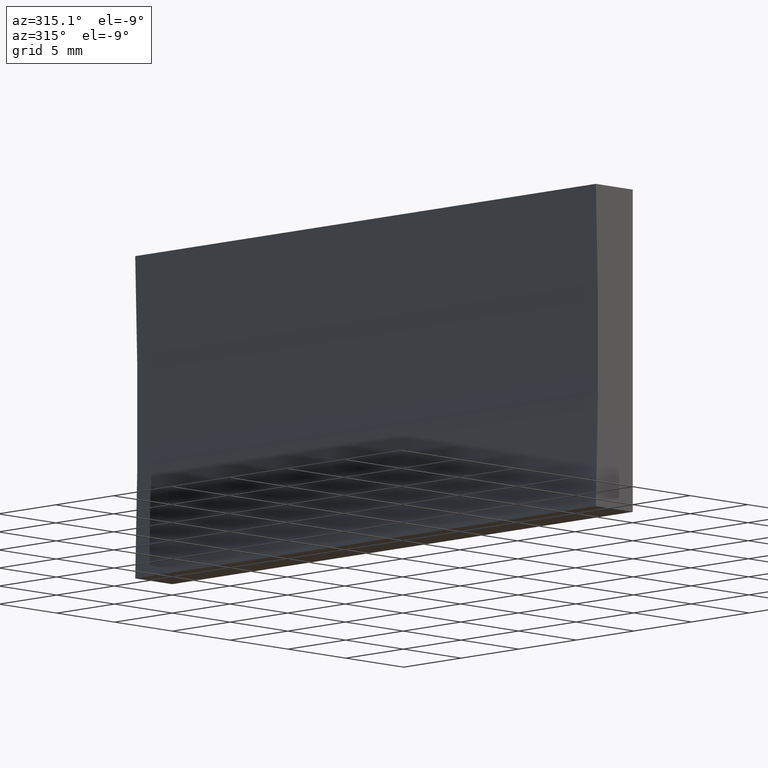
[diagram: clean part render]
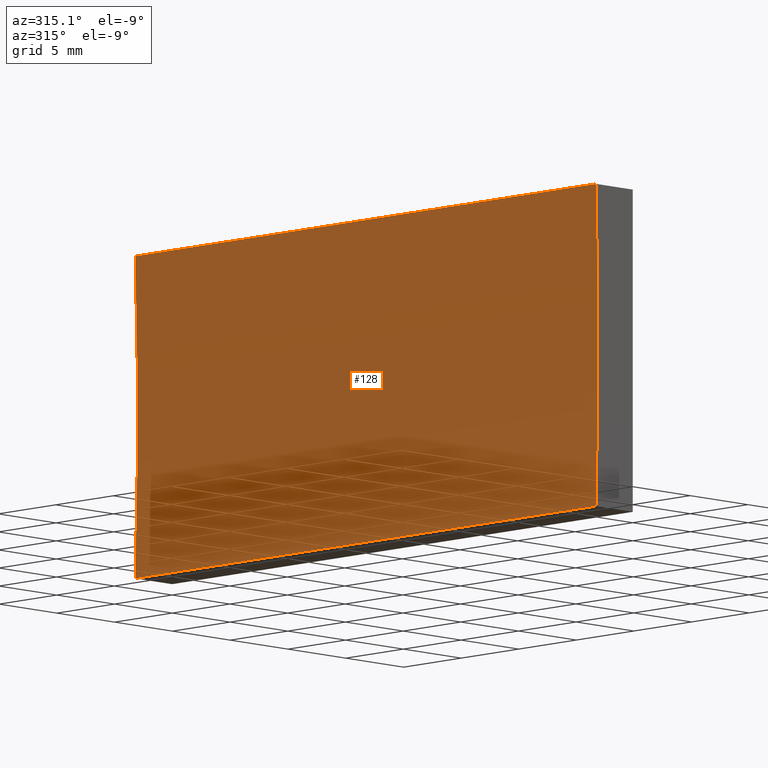
[diagram: same view with one face highlighted and labeled with its STEP entity id]
A machine part, auxiliary view. The second image highlights one B-rep face of the part: STEP entity #128.
In plain terms, the highlighted cylindrical surface (partial cylindrical patch) has radius 258.5 mm, axis along (-0, -1, -0).
Its self-contained STEP definition (entity closure, byte-faithful):
#21 = VERTEX_POINT ( 'NONE', #146 ) ;
#22 = CIRCLE ( 'NONE', #59, 258.5000000000000000 ) ;
#24 = CARTESIAN_POINT ( 'NONE',  ( -261.5000000000000000, 0.0000000000000000000, 10.00000000000003600 ) ) ;
#31 = LINE ( 'NONE', #202, #96 ) ;
#35 = VECTOR ( 'NONE', #45, 1000.000000000000000 ) ;
#37 = CYLINDRICAL_SURFACE ( 'NONE', #70, 258.5000000000000000 ) ;
#43 = ORIENTED_EDGE ( 'NONE', *, *, #156, .F. ) ;
#45 = DIRECTION ( 'NONE',  ( -0.0000000000000000000, -1.000000000000000000, -0.0000000000000000000 ) ) ;
#50 = LINE ( 'NONE', #197, #35 ) ;
#52 = DIRECTION ( 'NONE',  ( -0.0000000000000000000, -1.000000000000000000, -0.0000000000000000000 ) ) ;
#59 = AXIS2_PLACEMENT_3D ( 'NONE', #157, #52, #79 ) ;
#64 = DIRECTION ( 'NONE',  ( -0.0000000000000000000, -1.000000000000000000, -0.0000000000000000000 ) ) ;
#66 = CIRCLE ( 'NONE', #183, 258.5000000000000000 ) ;
#70 = AXIS2_PLACEMENT_3D ( 'NONE', #124, #147, #82 ) ;
#79 = DIRECTION ( 'NONE',  ( 0.0000000000000000000, 0.0000000000000000000, 1.000000000000000000 ) ) ;
#82 = DIRECTION ( 'NONE',  ( 0.0000000000000000000, 0.0000000000000000000, -1.000000000000000000 ) ) ;
#84 = EDGE_CURVE ( 'NONE', #177, #191, #31, .T. ) ;
#86 = EDGE_LOOP ( 'NONE', ( #129, #43, #90, #115 ) ) ;
#90 = ORIENTED_EDGE ( 'NONE', *, *, #192, .F. ) ;
#94 = DIRECTION ( 'NONE',  ( 0.0000000000000000000, 0.0000000000000000000, 1.000000000000000000 ) ) ;
#96 = VECTOR ( 'NONE', #188, 1000.000000000000000 ) ;
#108 = CARTESIAN_POINT ( 'NONE',  ( -3.193496016844377100, 40.00000000000000000, -1.734723475976807100E-014 ) ) ;
#109 = EDGE_CURVE ( 'NONE', #191, #21, #66, .T. ) ;
#115 = ORIENTED_EDGE ( 'NONE', *, *, #84, .T. ) ;
#117 = VERTEX_POINT ( 'NONE', #140 ) ;
#124 = CARTESIAN_POINT ( 'NONE',  ( -261.5000000000000000, 40.00000000000000000, 10.00000000000003600 ) ) ;
#128 = ADVANCED_FACE ( 'NONE', ( #190 ), #37, .F. ) ;
#129 = ORIENTED_EDGE ( 'NONE', *, *, #109, .T. ) ;
#140 = CARTESIAN_POINT ( 'NONE',  ( -3.193496016844379300, 40.00000000000000000, 20.00000000000000400 ) ) ;
#146 = CARTESIAN_POINT ( 'NONE',  ( -3.193496016844379300, 0.0000000000000000000, 20.00000000000000400 ) ) ;
#147 = DIRECTION ( 'NONE',  ( -0.0000000000000000000, -1.000000000000000000, -0.0000000000000000000 ) ) ;
#156 = EDGE_CURVE ( 'NONE', #117, #21, #50, .T. ) ;
#157 = CARTESIAN_POINT ( 'NONE',  ( -261.5000000000000000, 40.00000000000000000, 10.00000000000003600 ) ) ;
#177 = VERTEX_POINT ( 'NONE', #108 ) ;
#181 = CARTESIAN_POINT ( 'NONE',  ( -3.193496016844377100, 0.0000000000000000000, -1.734723475976807100E-014 ) ) ;
#183 = AXIS2_PLACEMENT_3D ( 'NONE', #24, #64, #94 ) ;
#188 = DIRECTION ( 'NONE',  ( -0.0000000000000000000, -1.000000000000000000, -0.0000000000000000000 ) ) ;
#190 = FACE_OUTER_BOUND ( 'NONE', #86, .T. ) ;
#191 = VERTEX_POINT ( 'NONE', #181 ) ;
#192 = EDGE_CURVE ( 'NONE', #177, #117, #22, .T. ) ;
#197 = CARTESIAN_POINT ( 'NONE',  ( -3.193496016844379300, 40.00000000000000000, 20.00000000000000400 ) ) ;
#202 = CARTESIAN_POINT ( 'NONE',  ( -3.193496016844377100, 40.00000000000000000, -1.734723475976807100E-014 ) ) ;